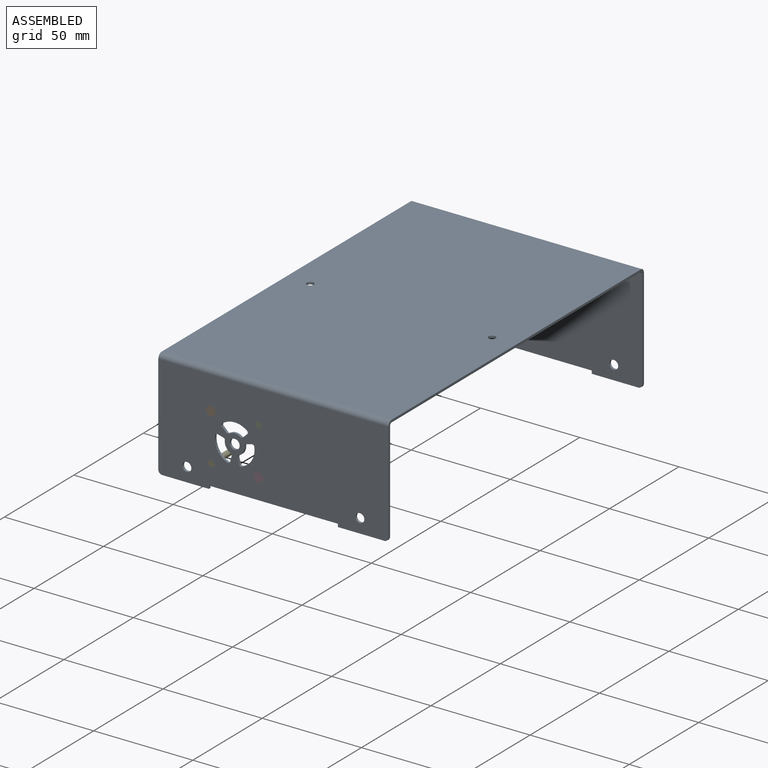
[diagram: assembled view]
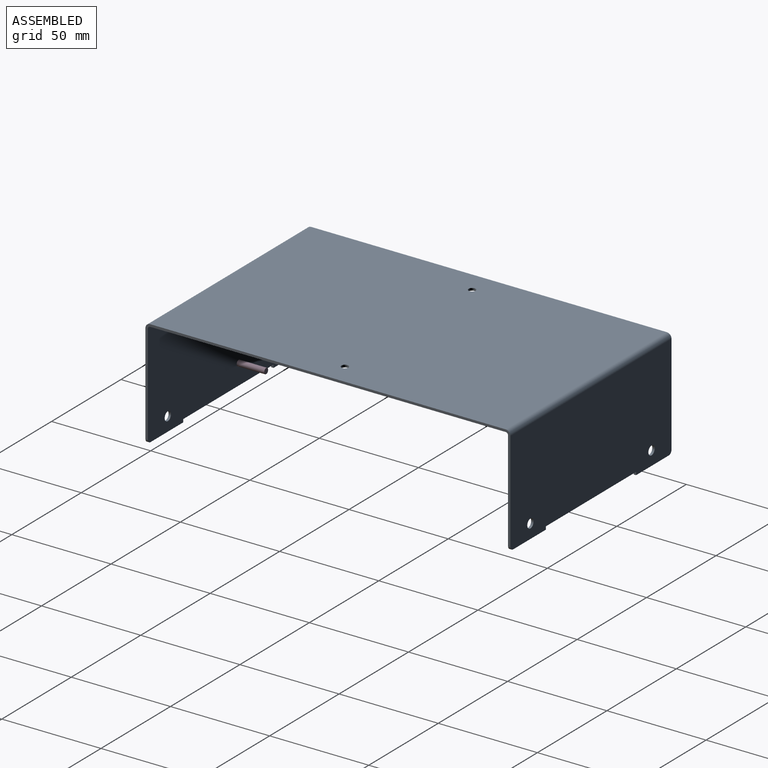
[diagram: assembled view, second angle]
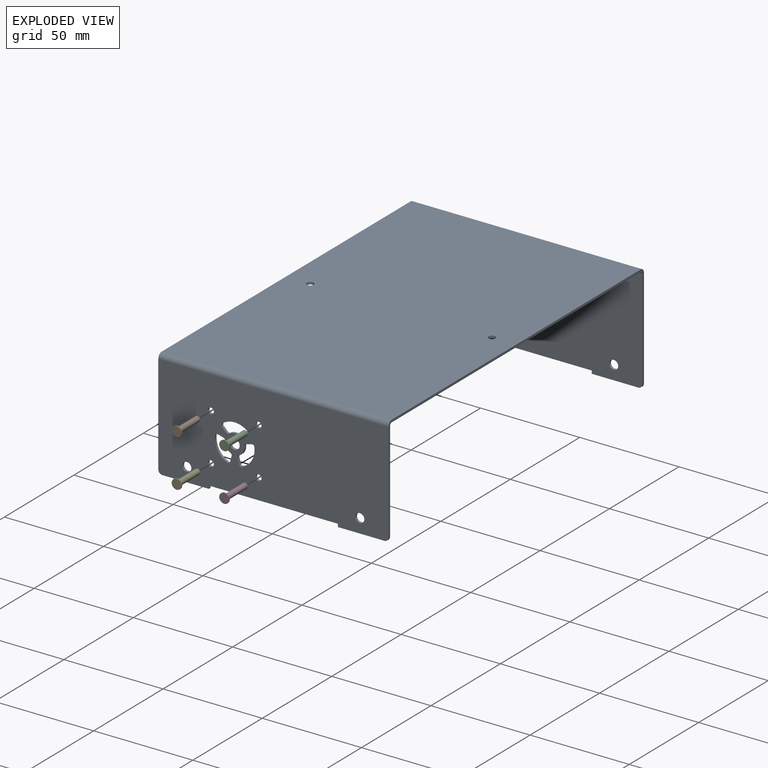
[diagram: exploded view]
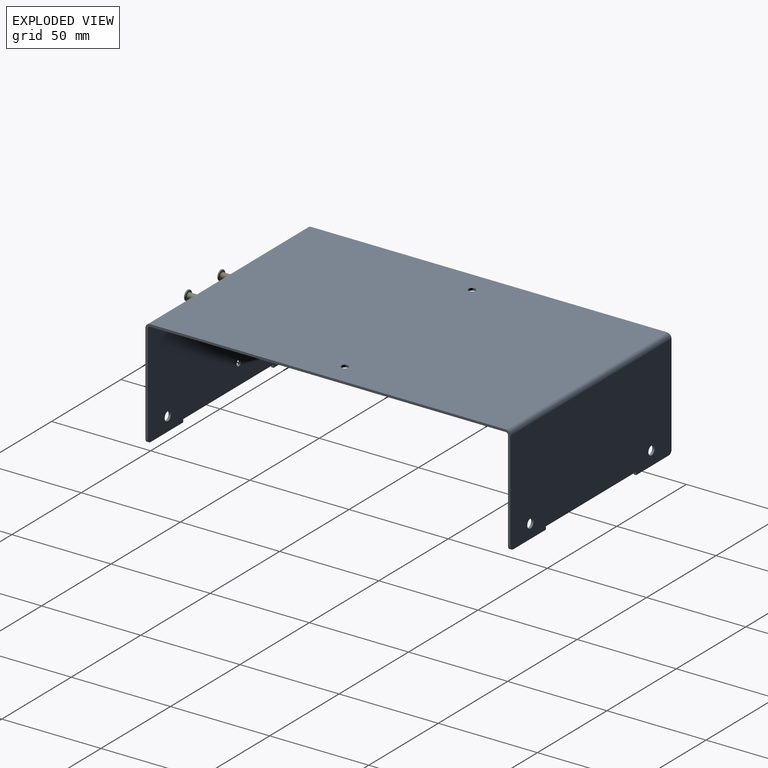
[diagram: exploded view, second angle]
ASSEMBLY  parts=5 mates=4
PART A: 69 faces, bbox 116x184x54.8 mm
  f0: plane 23.5x1.2mm, normal (0,0,-1), area 28.2mm2, adj f37,f38,f39,f41
  f1: plane 50.4x1.2mm, normal (1,0,0), area 60.5mm2, adj f38,f39,f41,f66
  f2: plane 50.4x1.2mm, normal (-1,0,0), area 60.5mm2, adj f38,f39,f40,f65
  f3: plane 23.5x1.2mm, normal (0,0,-1), area 28.2mm2, adj f4,f38,f39,f40
  f4: plane 1.5x1.2mm, normal (1,0,0), area 1.8mm2, adj f3,f5,f38,f39
  f5: plane 65x1.2mm, normal (0,0,-1), area 78mm2, adj f4,f37,f38,f39
  f6: cylinder r=1mm len=1.2mm, axis (0,-1,0), area 1.7mm2, adj f7,f33,f38,f39
  f7: plane 2.93x1.2mm, normal (-0.97,0,0.26), area 3.6mm2, adj f6,f8,f38,f39
  f8: cylinder r=1mm len=1.33mm, axis (0,-1,0), area 2mm2, adj f7,f9,f38,f39
  f9: cylinder r=10mm len=10.81mm, axis (0,-1,0), area 16.2mm2, adj f8,f10,f38,f39
  f10: cylinder r=1mm len=1.25mm, axis (0,-1,0), area 2mm2, adj f9,f11,f38,f39
  f11: plane 2.93x1.2mm, normal (-0.26,0,-0.97), area 3.6mm2, adj f10,f12,f38,f39
  f12: cylinder r=1mm len=1.2mm, axis (0,-1,0), area 1.7mm2, adj f11,f33,f38,f39
  f13: cylinder r=1mm len=1.2mm, axis (0,-1,0), area 1.7mm2, adj f14,f32,f38,f39
  f14: plane 2.93x1.2mm, normal (0.26,0,-0.97), area 3.6mm2, adj f13,f15,f38,f39
  f15: cylinder r=1mm len=1.25mm, axis (0,-1,0), area 2mm2, adj f14,f16,f38,f39
  f16: cylinder r=10mm len=10.81mm, axis (0,-1,0), area 16.2mm2, adj f15,f17,f38,f39
  f17: cylinder r=1mm len=1.33mm, axis (0,-1,0), area 2mm2, adj f16,f18,f38,f39
  f18: plane 2.93x1.2mm, normal (0.97,0,0.26), area 3.6mm2, adj f17,f19,f38,f39
  f19: cylinder r=1mm len=1.2mm, axis (0,-1,0), area 1.7mm2, adj f18,f32,f38,f39
  f20: cylinder r=5mm len=5.79mm, axis (0,-1,0), area 7.4mm2, adj f21,f30,f38,f39
  f21: cylinder r=1mm len=1.29mm, axis (0,-1,0), area 1.7mm2, adj f20,f22,f38,f39
  f22: plane 2.14x2.14mm, normal (0.71,0,0.71), area 3.6mm2, adj f21,f23,f38,f39
  f23: cylinder r=1mm len=1.49mm, axis (0,-1,0), area 2mm2, adj f22,f24,f38,f39
  f24: cylinder r=10mm len=12.48mm, axis (0,-1,0), area 16.2mm2, adj f23,f25,f38,f39
  f25: cylinder r=1mm len=1.49mm, axis (0,-1,0), area 2mm2, adj f24,f26,f38,f39
  f26: plane 2.14x2.14mm, normal (-0.71,0,0.71), area 3.6mm2, adj f25,f30,f38,f39
  f27: cylinder r=1.5mm len=3mm, axis (0,-1,0), area 11.3mm2, adj f38,f39
  f28: cylinder r=1.5mm len=3mm, axis (0,-1,0), area 11.3mm2, adj f38,f39
  f29: cylinder r=1.5mm len=3mm, axis (0,-1,0), area 11.3mm2, adj f38,f39
  f30: cylinder r=1mm len=1.29mm, axis (0,-1,0), area 1.7mm2, adj f20,f26,f38,f39
  f31: cylinder r=2.5mm len=5mm, axis (0,-1,0), area 18.8mm2, adj f38,f39
  f32: cylinder r=5mm len=5.02mm, axis (0,-1,0), area 7.4mm2, adj f13,f19,f38,f39
  f33: cylinder r=5mm len=5.02mm, axis (0,-1,0), area 7.4mm2, adj f6,f12,f38,f39
  f34: cylinder r=1.5mm len=3mm, axis (0,-1,0), area 11.3mm2, adj f38,f39
  f35: cylinder r=2.25mm len=4.5mm, axis (0,-1,0), area 17mm2, adj f38,f39
  f36: cylinder r=2.25mm len=4.5mm, axis (0,-1,0), area 17mm2, adj f38,f39
  f37: plane 1.5x1.2mm, normal (-1,0,0), area 1.8mm2, adj f0,f5,f38,f39
  f38: plane 116x52.4mm, normal (0,-1,0), area 5725.3mm2, adj f0,f1,f2,f3,f4,f5,f6,f7
  f39: plane 116x52.4mm, normal (0,1,0), area 5725.3mm2, adj f0,f1,f2,f3,f4,f5,f6,f7
  f40: cylinder r=2mm len=2mm, axis (0,1,0), area 3.8mm2, adj f2,f3,f38,f39
  f41: cylinder r=2mm len=2mm, axis (0,-1,0), area 3.8mm2, adj f0,f1,f38,f39
  f42: plane 65x1.2mm, normal (0,0,-1), area 78mm2, adj f43,f50,f51,f52
  f43: plane 1.5x1.2mm, normal (1,0,0), area 1.8mm2, adj f42,f44,f51,f52
  f44: plane 23.5x1.2mm, normal (0,0,-1), area 28.2mm2, adj f43,f51,f52,f53
  f45: plane 50.4x1.2mm, normal (-1,0,0), area 60.5mm2, adj f51,f52,f53,f61
  f46: plane 50.4x1.2mm, normal (1,0,0), area 60.5mm2, adj f51,f52,f54,f62
  f47: plane 23.5x1.2mm, normal (0,0,-1), area 28.2mm2, adj f50,f51,f52,f54
  f48: cylinder r=2.25mm len=4.5mm, axis (0,-1,0), area 17mm2, adj f51,f52
  f49: cylinder r=2.25mm len=4.5mm, axis (0,-1,0), area 17mm2, adj f51,f52
  f50: plane 1.5x1.2mm, normal (-1,0,0), area 1.8mm2, adj f42,f47,f51,f52
  f51: plane 116x52.4mm, normal (0,1,0), area 5947.4mm2, adj f42,f43,f44,f45,f46,f47,f48,f49
  f52: plane 116x52.4mm, normal (0,-1,0), area 5947.4mm2, adj f42,f43,f44,f45,f46,f47,f48,f49
  f53: cylinder r=2mm len=2mm, axis (0,-1,0), area 3.8mm2, adj f44,f45,f51,f52
  f54: cylinder r=2mm len=2mm, axis (0,1,0), area 3.8mm2, adj f46,f47,f51,f52
  f55: plane 179.2x1.2mm, normal (-1,0,0), area 215mm2, adj f59,f60,f61,f65
  f56: plane 179.2x1.2mm, normal (1,0,0), area 215mm2, adj f59,f60,f62,f66
  f57: cylinder r=1.75mm len=3.5mm, axis (0,0,-1), area 13.2mm2, adj f59,f60
  f58: cylinder r=1.75mm len=3.5mm, axis (0,0,-1), area 13.2mm2, adj f59,f60
  f59: plane 179.2x116mm, normal (0,0,1), area 20768mm2, adj f55,f56,f57,f58,f63,f67
  f60: plane 179.2x116mm, normal (0,0,-1), area 20768mm2, adj f55,f56,f57,f58,f64,f68
  f61: plane 2.4x2.4mm, normal (-1,0,0), area 3.4mm2, adj f45,f55,f63,f64
  f62: plane 2.4x2.4mm, normal (1,0,0), area 3.4mm2, adj f46,f56,f63,f64
  f63: cylinder r=2.4mm len=116mm, axis (-1,0,0), area 437.3mm2, adj f51,f59,f61,f62
  f64: cylinder r=1.2mm len=116mm, axis (-1,0,0), area 218.7mm2, adj f52,f60,f61,f62
  f65: plane 2.4x2.4mm, normal (-1,0,0), area 3.4mm2, adj f2,f55,f67,f68
  f66: plane 2.4x2.4mm, normal (1,0,0), area 3.4mm2, adj f1,f56,f67,f68
  f67: cylinder r=2.4mm len=116mm, axis (-1,0,0), area 437.3mm2, adj f38,f59,f65,f66
  f68: cylinder r=1.2mm len=116mm, axis (-1,0,0), area 218.7mm2, adj f39,f60,f65,f66
PART B: 8 faces, bbox 15x5.4x5.4 mm
  f0: cylinder r=1.4mm len=13.9mm, axis (-1,0,0), area 122.3mm2, adj f1,f2
  f1: plane 2.8x2.8mm, normal (1,0,0), area 6.2mm2, adj f0
  f2: plane 3x3mm, normal (1,0,0), area 0.9mm2, adj f0,f3
  f3: cylinder r=1.5mm len=3mm, axis (-1,0,0), area 3.3mm2, adj f2,f4
  f4: plane 4.25x4.25mm, normal (1,0,0), area 7.1mm2, adj f3,f5
  f5: torus R=2.12mm, axis (-1,0,0), area 8.7mm2, adj f4,f6
  f6: cylinder r=2.5mm len=5mm, axis (-1,0,0), area 5.9mm2, adj f5,f7
  f7: plane 5x5mm, normal (-1,0,0), area 19.6mm2, adj f6
PART C: same geometry as B
PART D: same geometry as B
PART E: same geometry as B
PLACE A at identity fixed
PLACE B rot(axis=(0,0,1),90deg) t=(-31.5,-92,36)mm
PLACE C rot(axis=(0,0,1),90deg) t=(-7.5,-92,36)mm
PLACE D rot(axis=(0,0,1),90deg) t=(-7.5,-92,12)mm
PLACE E rot(axis=(0,0,1),90deg) t=(-31.5,-92,12)mm
MATE fastened D.f0 <-> A.f28  axis (0,-1,0) through (-7.5,-92,12)mm
MATE fastened E.f0 <-> A.f27  axis (0,-1,0) through (-31.5,-92,12)mm
MATE fastened C.f0 <-> A.f29  axis (0,-1,0) through (-7.5,-92,36)mm
MATE fastened B.f0 <-> A.f34  axis (0,-1,0) through (-31.5,-92,36)mm
